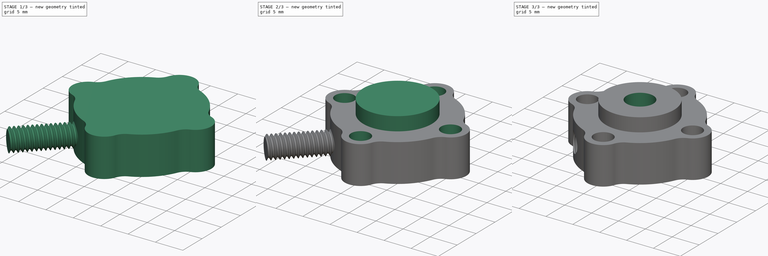
[diagram: build sequence overview — one tinted view per stage of 3, left to right]
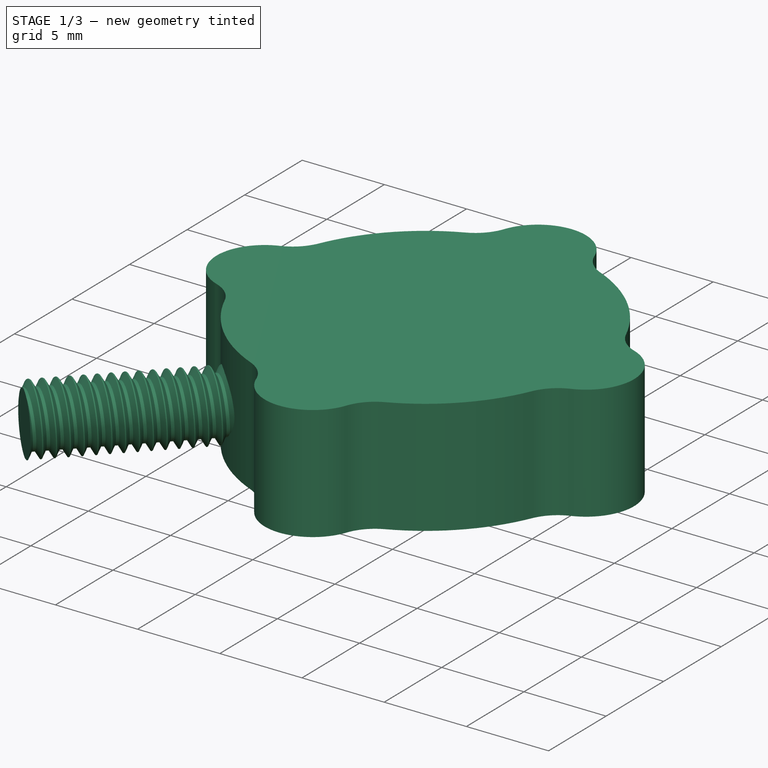
[diagram: stage 1 of 3 — iso view after this stage's code; geometry added in this stage tinted green]
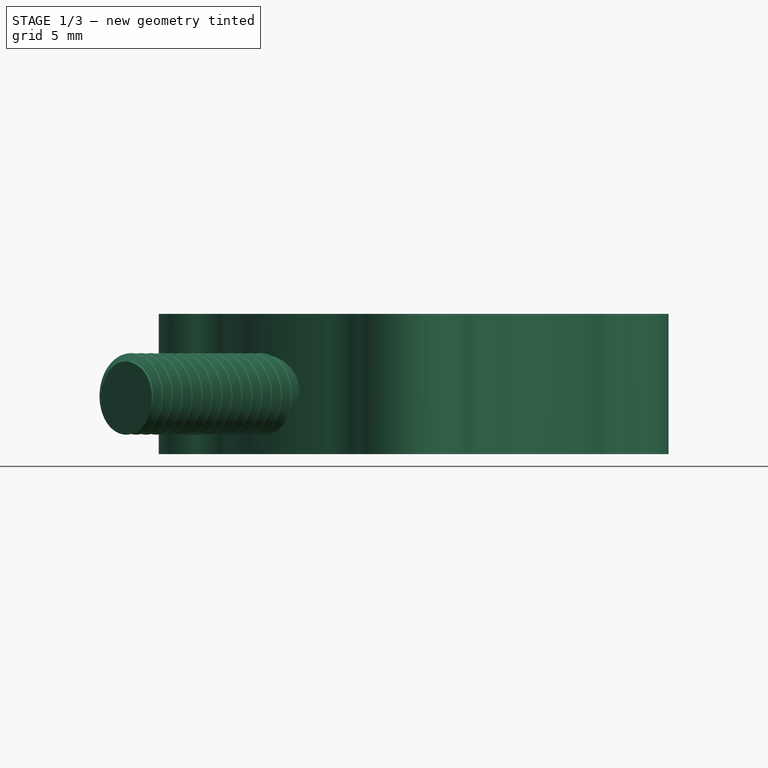
[diagram: stage 1 of 3 — front view after this stage's code; geometry added in this stage tinted green]
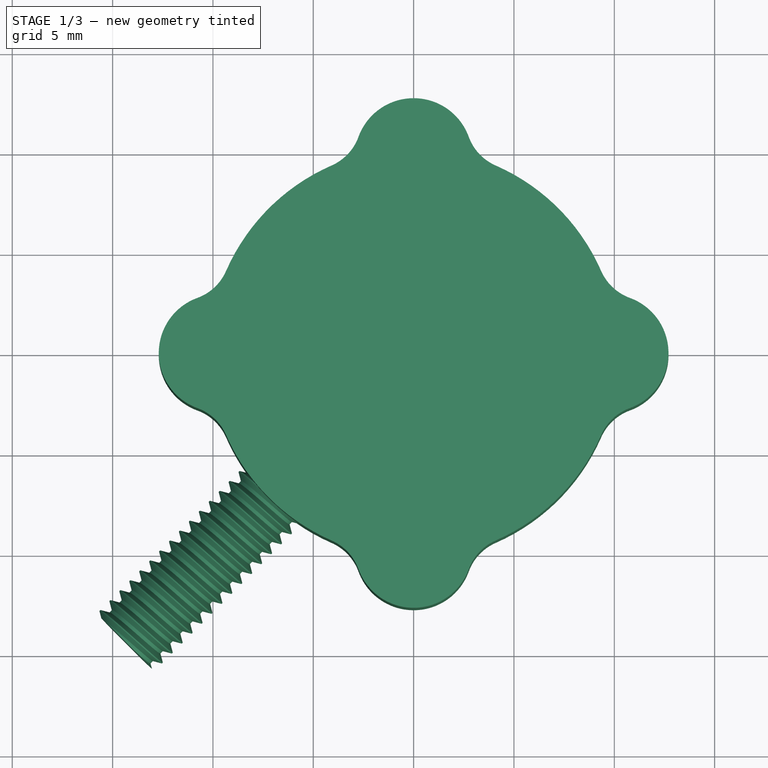
[diagram: stage 1 of 3 — top view after this stage's code; geometry added in this stage tinted green]
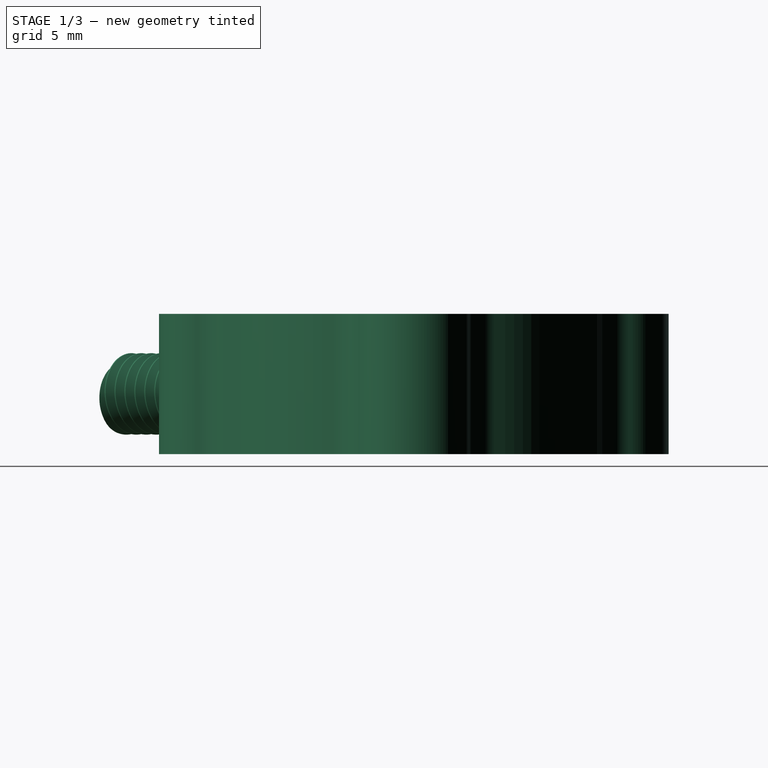
[diagram: stage 1 of 3 — right view after this stage's code; geometry added in this stage tinted green]
FCSTD DOCUMENT  (FreeCAD 0.16R6712 (Git))
Label: Adapter
License: CreativeCommons Attribution-ShareAlike
LicenseURL: http://creativecommons.org/licenses/by-sa/4.0/
objects: Sketcher::SketchObject×4, PartDesign::Pad×2, PartDesign::Pocket×2, Part::FeaturePython×1, Part::Cut×1, Part::Feature×1
note: 15 computed .brp shape members not serialized (recipe doc carries the construction recipe); baked Part::Feature solids carry a one-line shape summary decoded from their .brp

FEATURE [Sketcher::SketchObject] Sketch
  sketch-geometry (31):
    g0: Circle [constr] CenterX=0 CenterY=0 CenterZ=0 NormalX=0 NormalY=0 NormalZ=1 Radius=12.7
    g1: Circle [constr] CenterX=0 CenterY=0 CenterZ=0 NormalX=0 NormalY=0 NormalZ=1 Radius=9.779
    g2: Circle [constr] CenterX=0 CenterY=0 CenterZ=0 NormalX=0 NormalY=0 NormalZ=1 Radius=10.2
    g3: Circle [constr] CenterX=-9.779 CenterY=0 CenterZ=0 NormalX=0 NormalY=0 NormalZ=1 Radius=2.921
    g4: Circle [constr] CenterX=0 CenterY=9.779 CenterZ=0 NormalX=0 NormalY=0 NormalZ=1 Radius=2.921
    g5: Circle [constr] CenterX=9.779 CenterY=0 CenterZ=0 NormalX=0 NormalY=0 NormalZ=1 Radius=2.921
    g6: Circle [constr] CenterX=0 CenterY=-9.779 CenterZ=0 NormalX=0 NormalY=0 NormalZ=1 Radius=2.921
    g7: Circle [constr] CenterX=-11.6337 CenterY=5.09386 CenterZ=0 NormalX=0 NormalY=0 NormalZ=1 Radius=2.5
    g8: Circle [constr] CenterX=-11.6337 CenterY=-5.09386 CenterZ=0 NormalX=0 NormalY=0 NormalZ=1 Radius=2.5
    g9: Circle [constr] CenterX=-5.09386 CenterY=11.6337 CenterZ=0 NormalX=0 NormalY=0 NormalZ=1 Radius=2.5
    g10: Circle [constr] CenterX=5.09386 CenterY=11.6337 CenterZ=0 NormalX=0 NormalY=0 NormalZ=1 Radius=2.5
    g11: Circle [constr] CenterX=11.6337 CenterY=5.09386 CenterZ=0 NormalX=0 NormalY=0 NormalZ=1 Radius=2.5
    g12: Circle [constr] CenterX=11.6337 CenterY=-5.09386 CenterZ=0 NormalX=0 NormalY=0 NormalZ=1 Radius=2.5
    g13: Circle [constr] CenterX=5.09386 CenterY=-11.6337 CenterZ=0 NormalX=0 NormalY=0 NormalZ=1 Radius=2.5
    g14: Circle [constr] CenterX=-5.09386 CenterY=-11.6337 CenterZ=0 NormalX=0 NormalY=0 NormalZ=1 Radius=2.5
    g15: ArcOfCircle CenterX=-9.779 CenterY=0 CenterZ=0 NormalX=0 NormalY=0 NormalZ=1 Radius=2.921 StartAngle=1.91998 EndAngle=4.36321
    g16: ArcOfCircle CenterX=-11.6337 CenterY=5.09386 CenterZ=0 NormalX=0 NormalY=0 NormalZ=1 Radius=2.5 StartAngle=5.06157 EndAngle=5.87048
    g17: ArcOfCircle CenterX=0 CenterY=0 CenterZ=0 NormalX=0 NormalY=0 NormalZ=1 Radius=10.2 StartAngle=1.9835 EndAngle=2.72888
    g18: ArcOfCircle CenterX=-5.09386 CenterY=11.6337 CenterZ=0 NormalX=0 NormalY=0 NormalZ=1 Radius=2.5 StartAngle=5.1251 EndAngle=5.934
    g19: ArcOfCircle CenterX=0 CenterY=9.779 CenterZ=0 NormalX=0 NormalY=0 NormalZ=1 Radius=2.921 StartAngle=0.349182 EndAngle=2.79241
    g20: ArcOfCircle CenterX=5.09386 CenterY=11.6337 CenterZ=0 NormalX=0 NormalY=0 NormalZ=1 Radius=2.5 StartAngle=3.49077 EndAngle=4.29968
    g21: ArcOfCircle CenterX=0 CenterY=0 CenterZ=0 NormalX=0 NormalY=0 NormalZ=1 Radius=10.2 StartAngle=0.412708 EndAngle=1.15809
    g22: ArcOfCircle CenterX=11.6337 CenterY=5.09386 CenterZ=0 NormalX=0 NormalY=0 NormalZ=1 Radius=2.5 StartAngle=3.5543 EndAngle=4.36321
    g23: ArcOfCircle CenterX=9.779 CenterY=0 CenterZ=0 NormalX=0 NormalY=0 NormalZ=1 Radius=2.921 StartAngle=5.06157 EndAngle=7.5048
    g24: ArcOfCircle CenterX=11.6337 CenterY=-5.09386 CenterZ=0 NormalX=0 NormalY=0 NormalZ=1 Radius=2.5 StartAngle=1.91998 EndAngle=2.72888
    g25: ArcOfCircle CenterX=0 CenterY=0 CenterZ=0 NormalX=0 NormalY=0 NormalZ=1 Radius=10.2 StartAngle=5.1251 EndAngle=5.87048
    g26: ArcOfCircle CenterX=5.09386 CenterY=-11.6337 CenterZ=0 NormalX=0 NormalY=0 NormalZ=1 Radius=2.5 StartAngle=1.9835 EndAngle=2.79241
    g27: ArcOfCircle CenterX=0 CenterY=-9.779 CenterZ=0 NormalX=0 NormalY=0 NormalZ=1 Radius=2.921 StartAngle=3.49077 EndAngle=5.934
    g28: ArcOfCircle CenterX=-5.09386 CenterY=-11.6337 CenterZ=0 NormalX=0 NormalY=0 NormalZ=1 Radius=2.5 StartAngle=0.349182 EndAngle=1.15809
    g29: ArcOfCircle CenterX=0 CenterY=0 CenterZ=0 NormalX=0 NormalY=0 NormalZ=1 Radius=10.2 StartAngle=3.5543 EndAngle=4.29968
    g30: ArcOfCircle CenterX=-11.6337 CenterY=-5.09386 CenterZ=0 NormalX=0 NormalY=0 NormalZ=1 Radius=2.5 StartAngle=0.412701 EndAngle=1.22161
  constraints (90):
    c: Coincident(g0,g-1)
    c: Coincident(g1,g-1)
    c: Radius(g1) = 9.779
    c: Radius(g0) = 12.7
    c: Coincident(g2,g-1)
    c: Radius(g2) = 10.2
    c: Tangent(g3,g0)
    c: Tangent(g4,g0)
    c: Tangent(g5,g0)
    c: Tangent(g6,g0)
    c: Tangent(g7,g2)
    c: Tangent(g7,g3)
    c: Tangent(g9,g2)
    c: Tangent(g9,g4)
    c: Tangent(g10,g4)
    c: Tangent(g10,g2)
    c: PointOnObject(g3,g1)
    c: PointOnObject(g3,g-1)
    c: Tangent(g8,g3)
    c: Tangent(g8,g2)
    c: PointOnObject(g4,g1)
    c: PointOnObject(g4,g-2)
    c: PointOnObject(g5,g1)
    c: PointOnObject(g5,g-1)
    c: Tangent(g11,g5)
    c: Tangent(g11,g2)
    c: Tangent(g12,g5)
    c: Tangent(g12,g2)
    c: PointOnObject(g6,g1)
    c: PointOnObject(g6,g-2)
    c: Tangent(g13,g6)
    c: Tangent(g13,g2)
    c: Tangent(g14,g6)
    c: Tangent(g14,g2)
    c: PointOnObject(g8,g0)
    c: PointOnObject(g7,g0)
    c: PointOnObject(g9,g0)
    c: PointOnObject(g10,g0)
    c: PointOnObject(g11,g0)
    c: PointOnObject(g12,g0)
    c: PointOnObject(g13,g0)
    c: PointOnObject(g14,g0)
    c: Coincident(g15,g3)
    c: PointOnObject(g15,g3)
    c: PointOnObject(g15,g7)
    c: PointOnObject(g15,g8)
    c: Coincident(g16,g7)
    c: Coincident(g16,g15)
    c: PointOnObject(g16,g2)
    c: Coincident(g17,g-1)
    c: Coincident(g17,g16)
    c: Coincident(g18,g9)
    c: Coincident(g18,g17)
    c: PointOnObject(g17,g9)
    c: PointOnObject(g18,g4)
    c: Coincident(g19,g4)
    c: Coincident(g19,g18)
    c: Coincident(g20,g10)
    c: Coincident(g20,g19)
    c: PointOnObject(g19,g10)
    c: PointOnObject(g20,g2)
    c: Coincident(g21,g-1)
    c: Coincident(g21,g20)
    c: PointOnObject(g21,g11)
    c: Coincident(g22,g11)
    c: Coincident(g22,g21)
    c: Coincident(g23,g5)
    c: Coincident(g23,g22)
    c: Coincident(g24,g12)
    c: Coincident(g24,g23)
    c: PointOnObject(g22,g5)
    c: PointOnObject(g23,g12)
    c: PointOnObject(g24,g2)
    c: Coincident(g25,g-1)
    c: Coincident(g25,g24)
    c: Coincident(g26,g13)
    c: Coincident(g26,g25)
    c: Coincident(g27,g6)
    c: Coincident(g27,g26)
    c: PointOnObject(g25,g13)
    c: PointOnObject(g26,g6)
    c: PointOnObject(g27,g14)
    c: Coincident(g28,g14)
    c: Coincident(g28,g27)
    c: Coincident(g29,g-1)
    c: Coincident(g29,g28)
    c: Coincident(g30,g8)
    c: Coincident(g30,g29)
    c: Coincident(g30,g15)
    c: PointOnObject(g28,g2)
FEATURE [PartDesign::Pad] Pad
  Length = 6.985
  Length2 = 100
  Sketch = -> Sketch
  Type = 0
FEATURE [Part::FeaturePython] ScrewTap  label="M4x20.0-ScrewTap"  # Fasteners workbench fastener (typed FeaturePython)
  Placement = pos=(0,0,3) rot=(-0.357407,0.862856,0.357407;1.71777rad)
  diameter = 6
  invert = false
  length = 20
  matchOuter = false
  offset = 0
  thread = true
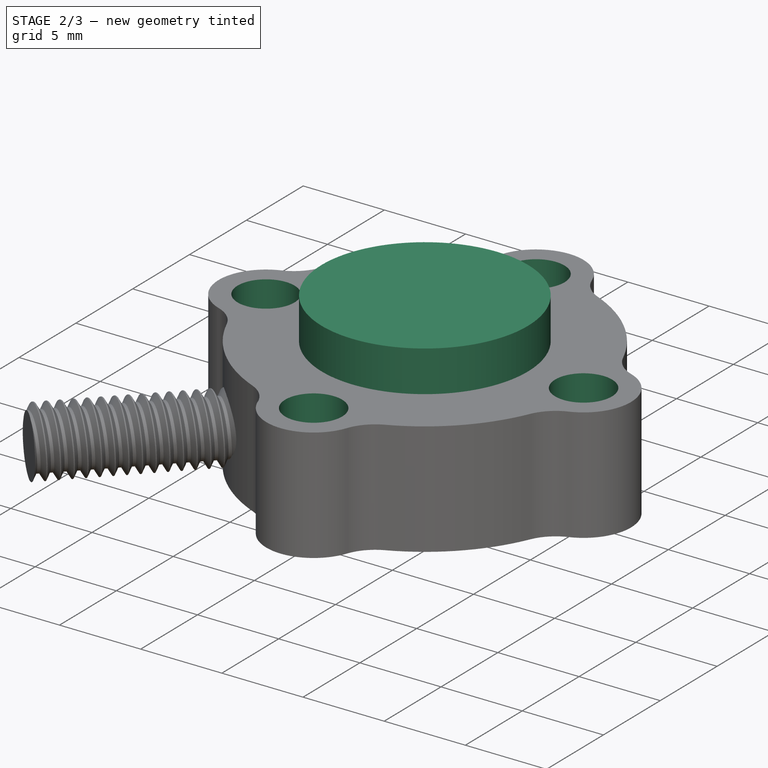
[diagram: stage 2 of 3 — iso view after this stage's code; geometry added in this stage tinted green]
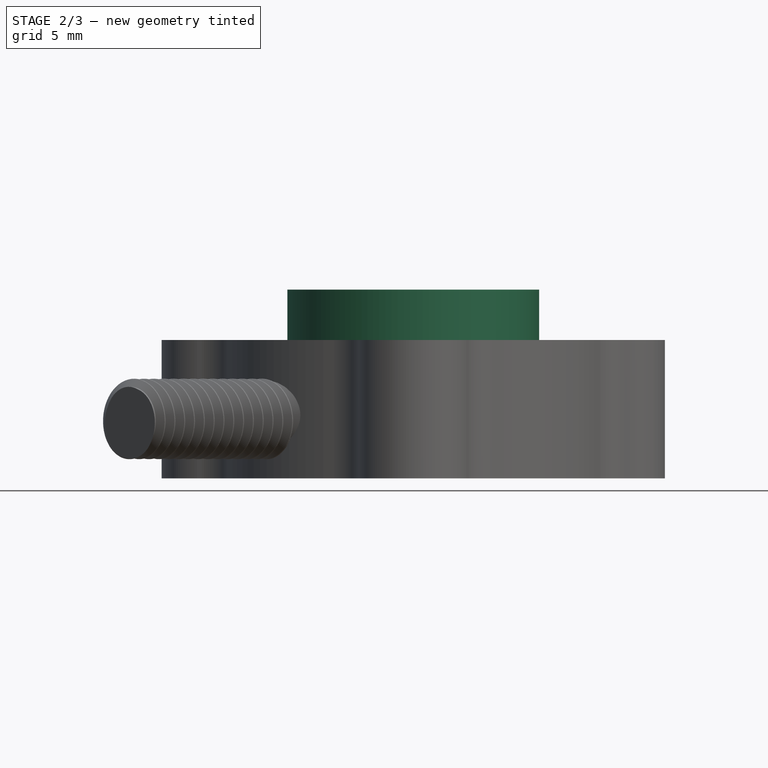
[diagram: stage 2 of 3 — front view after this stage's code; geometry added in this stage tinted green]
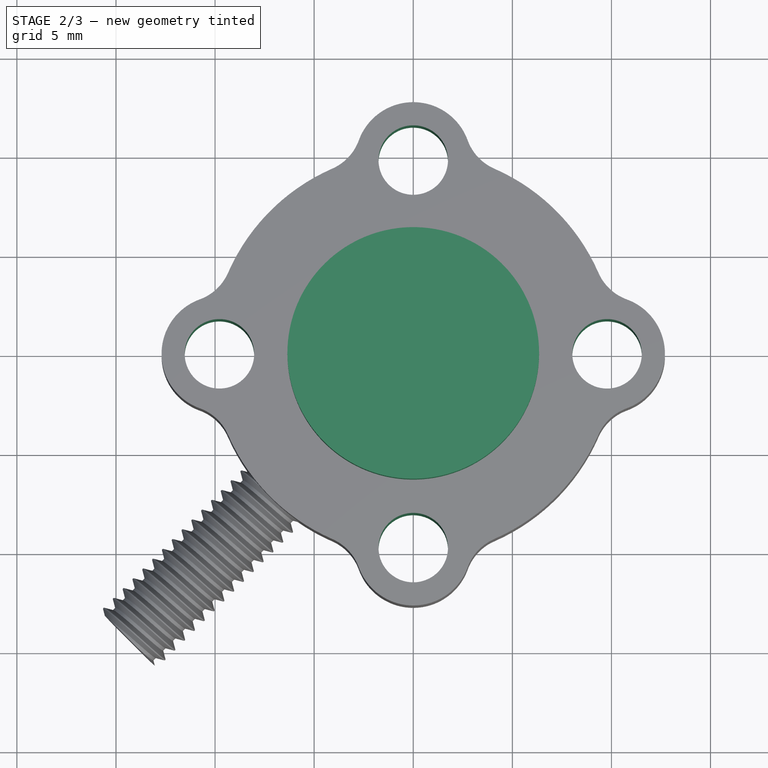
[diagram: stage 2 of 3 — top view after this stage's code; geometry added in this stage tinted green]
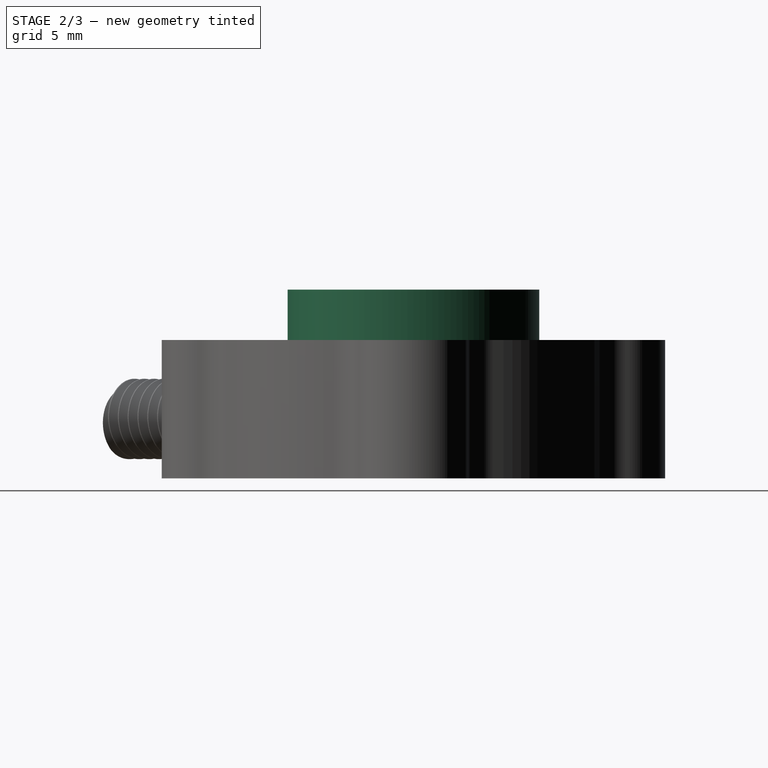
[diagram: stage 2 of 3 — right view after this stage's code; geometry added in this stage tinted green]
FEATURE [Sketcher::SketchObject] Sketch001
  Placement = pos=(0,0,6.985) rot=(0,0,1;0rad)
  Support = -> Pad [Face18]
  sketch-geometry (7):
    g0: Circle [constr] CenterX=0 CenterY=0 CenterZ=0 NormalX=0 NormalY=0 NormalZ=1 Radius=12.7
    g1: Circle [constr] CenterX=0 CenterY=0 CenterZ=0 NormalX=0 NormalY=0 NormalZ=1 Radius=9.779
    g2: Circle CenterX=0 CenterY=9.779 CenterZ=0 NormalX=0 NormalY=0 NormalZ=1 Radius=1.7526
    g3: Circle CenterX=9.779 CenterY=0 CenterZ=0 NormalX=0 NormalY=0 NormalZ=1 Radius=1.7526
    g4: Circle CenterX=0 CenterY=-9.779 CenterZ=0 NormalX=0 NormalY=0 NormalZ=1 Radius=1.7526
    g5: Circle CenterX=-9.779 CenterY=0 CenterZ=0 NormalX=0 NormalY=0 NormalZ=1 Radius=1.7526
    g6: Circle [constr] CenterX=0 CenterY=0 CenterZ=0 NormalX=0 NormalY=0 NormalZ=1 Radius=11.2751
  constraints (17):
    c: Coincident(g0,g-1)
    c: Coincident(g1,g-1)
    c: PointOnObject(g2,g1)
    c: PointOnObject(g3,g1)
    c: PointOnObject(g4,g1)
    c: PointOnObject(g5,g1)
    c: PointOnObject(g5,g-1)
    c: PointOnObject(g2,g-2)
    c: PointOnObject(g3,g-1)
    c: PointOnObject(g4,g-2)
    c: Radius(g5) = 1.7526
    c: Equal(g5,g2)
    c: Equal(g2,g3)
    c: Equal(g3,g4)
    c: Radius(g1) = 9.779
    c: Radius(g0) = 12.7
    c: Coincident(g6,g-1)
FEATURE [PartDesign::Pocket] Pocket
  Length = 5
  Sketch = -> Sketch001
  Type = 1
FEATURE [Sketcher::SketchObject] Sketch002
  Placement = pos=(0,0,6.985) rot=(0,0,1;0rad)
  Support = -> Pocket [Face5]
  sketch-geometry (1):
    g0: Circle CenterX=0 CenterY=0 CenterZ=0 NormalX=0 NormalY=0 NormalZ=1 Radius=6.35
  constraints (2):
    c: Coincident(g0,g-1)
    c: Radius(g0) = 6.35
FEATURE [PartDesign::Pad] Pad001
  Length = 2.54
  Length2 = 100
  Sketch = -> Sketch002
  Type = 0
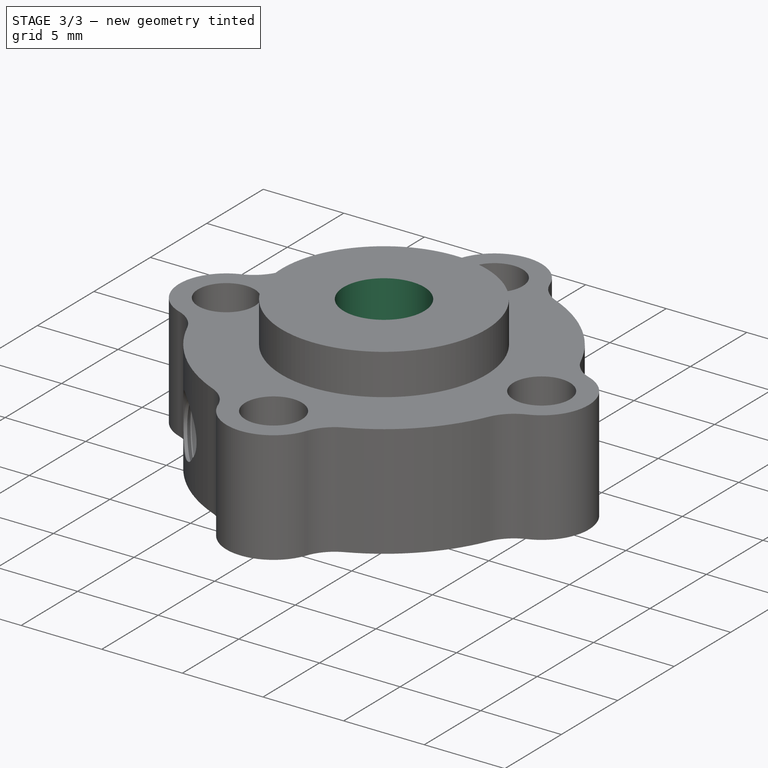
[diagram: stage 3 of 3 — iso view after this stage's code; geometry added in this stage tinted green]
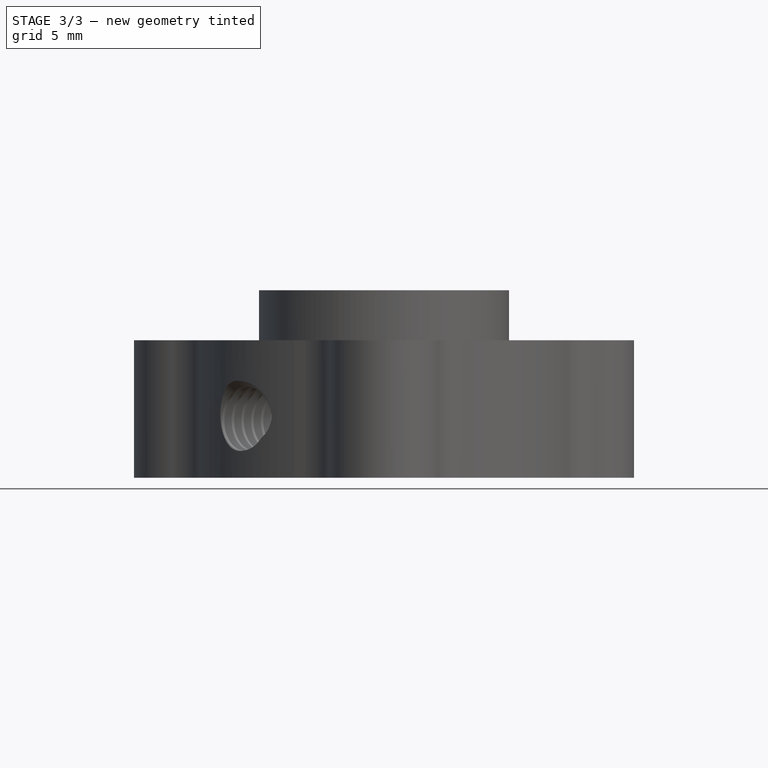
[diagram: stage 3 of 3 — front view after this stage's code; geometry added in this stage tinted green]
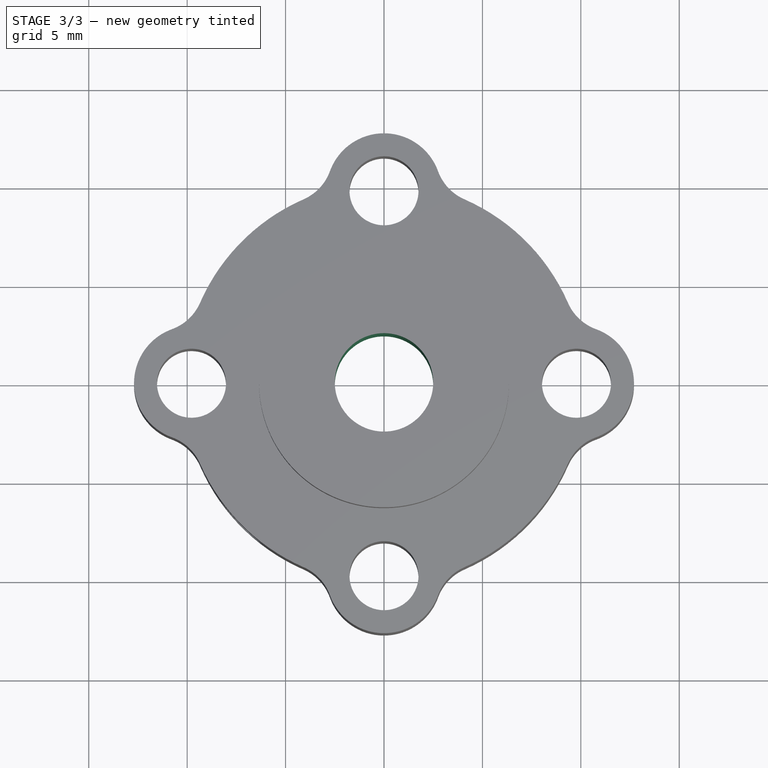
[diagram: stage 3 of 3 — top view after this stage's code; geometry added in this stage tinted green]
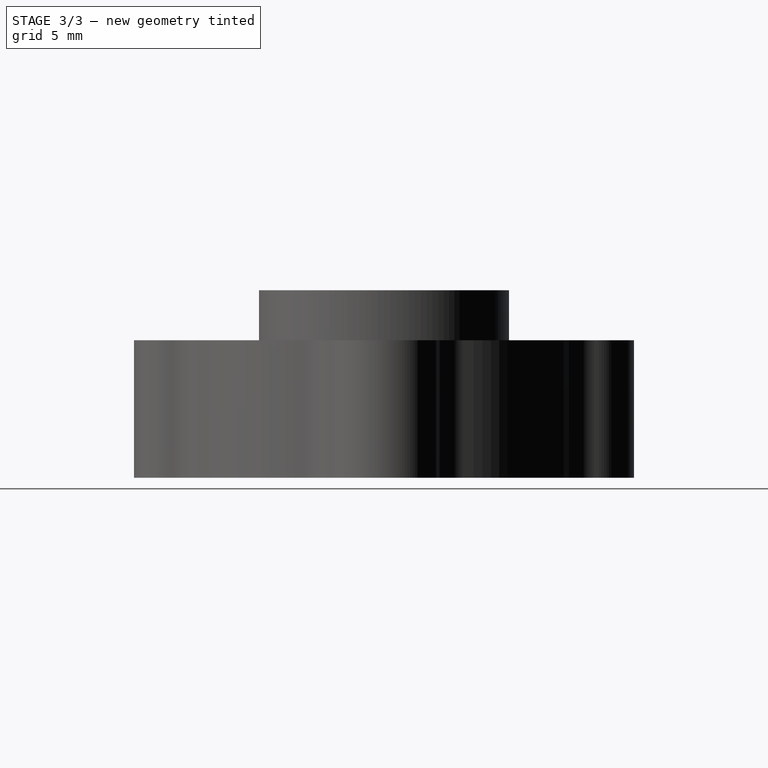
[diagram: stage 3 of 3 — right view after this stage's code; geometry added in this stage tinted green]
FEATURE [Sketcher::SketchObject] Sketch003
  Placement = pos=(0,0,9.525) rot=(0,0,1;0rad)
  Support = -> Pad001 [Face24]
  sketch-geometry (1):
    g0: Circle CenterX=0 CenterY=0 CenterZ=0 NormalX=0 NormalY=0 NormalZ=1 Radius=2.5
  constraints (2):
    c: Coincident(g0,g-1)
    c: Radius(g0) = 2.5
FEATURE [PartDesign::Pocket] Pocket001
  Length = 5
  Sketch = -> Sketch003
  Type = 1
FEATURE [Part::Cut] Cut
  Base = -> Pocket001
  Tool = -> ScrewTap
FEATURE [Part::Feature] Cut_solid  label="Cut (Solid)"
  shape: bbox 25.4 x 25.4 x 9.525 mm, 83 faces (baked)
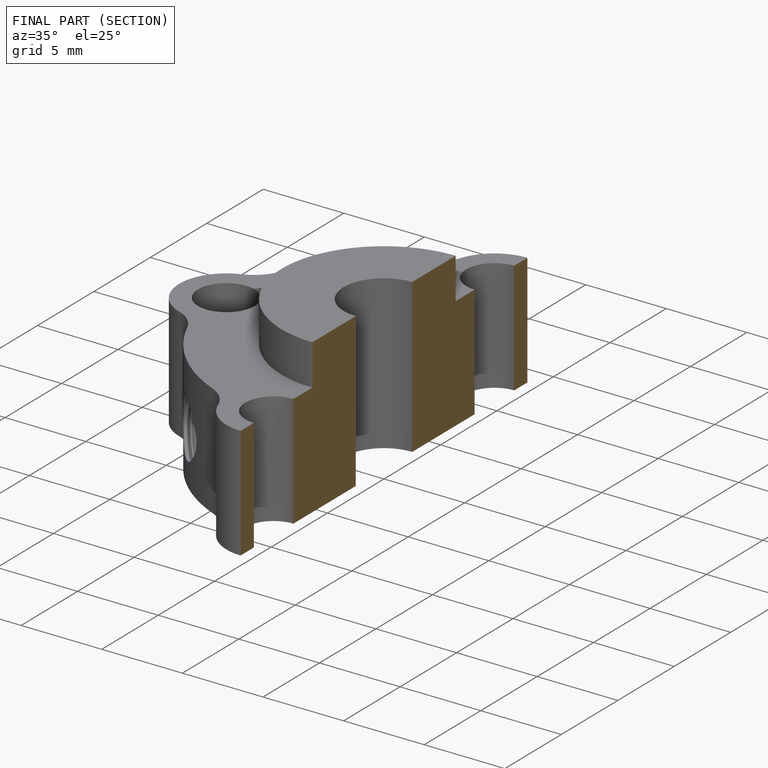
[diagram: finished part — half-section view (interior)]
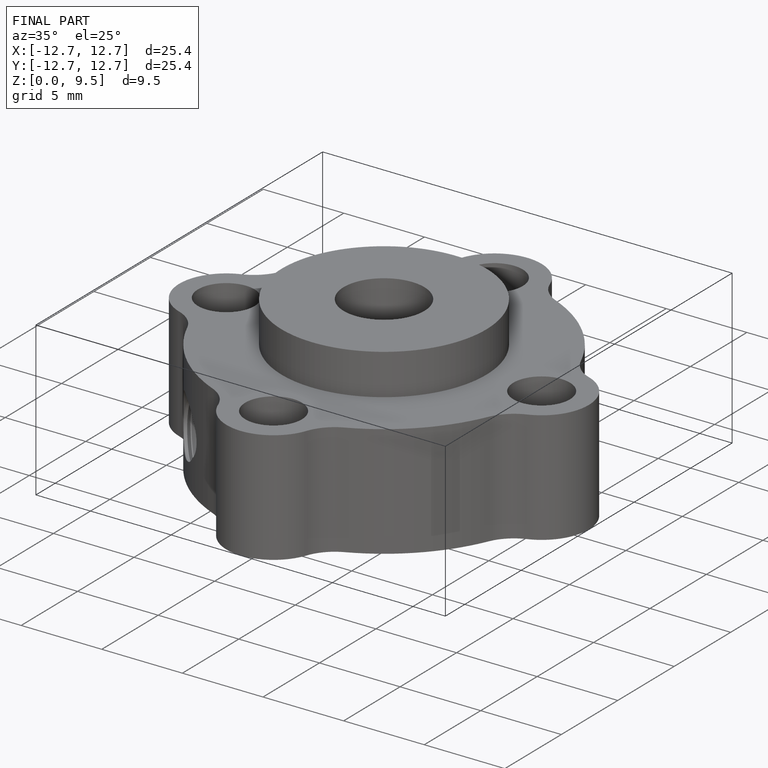
[diagram: finished part — iso view with bounding-box wireframe]
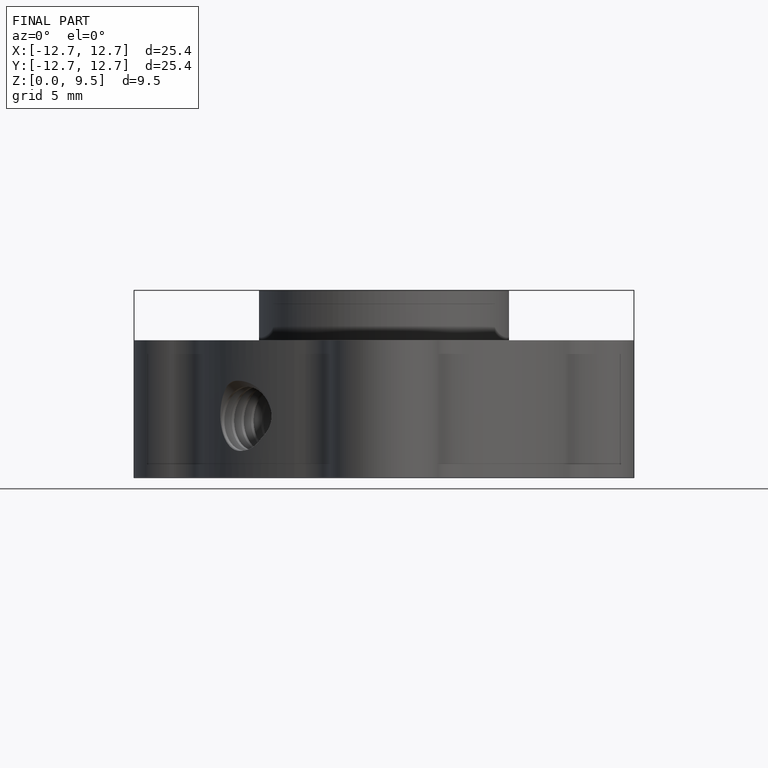
[diagram: finished part — front view with bounding-box wireframe]
